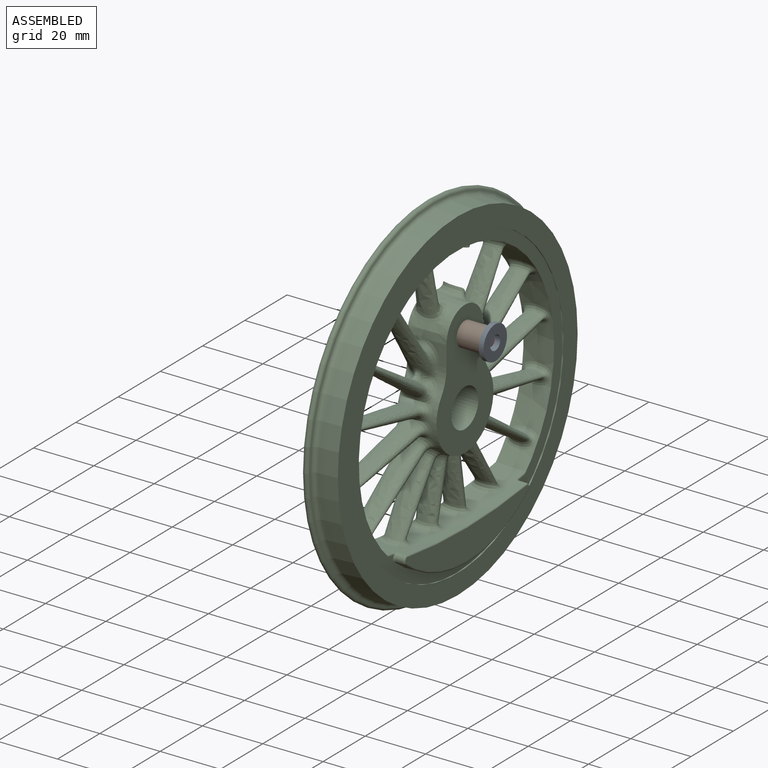
[diagram: assembled view]
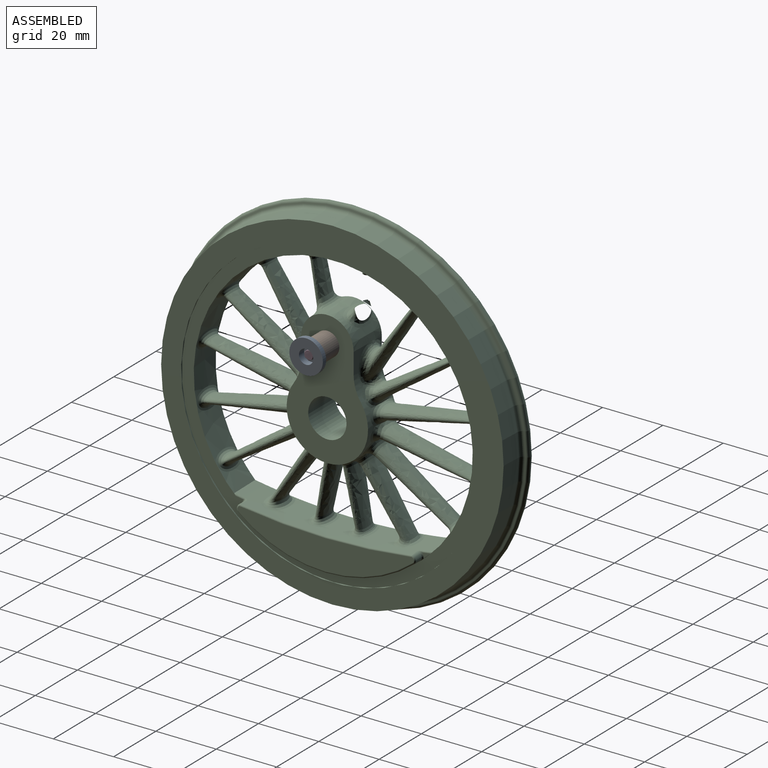
[diagram: assembled view, second angle]
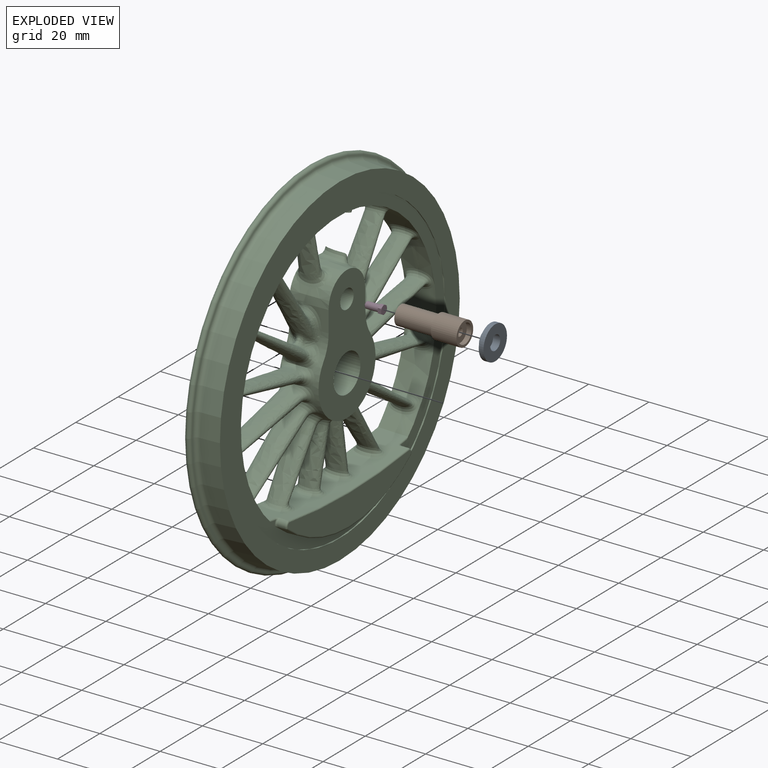
[diagram: exploded view]
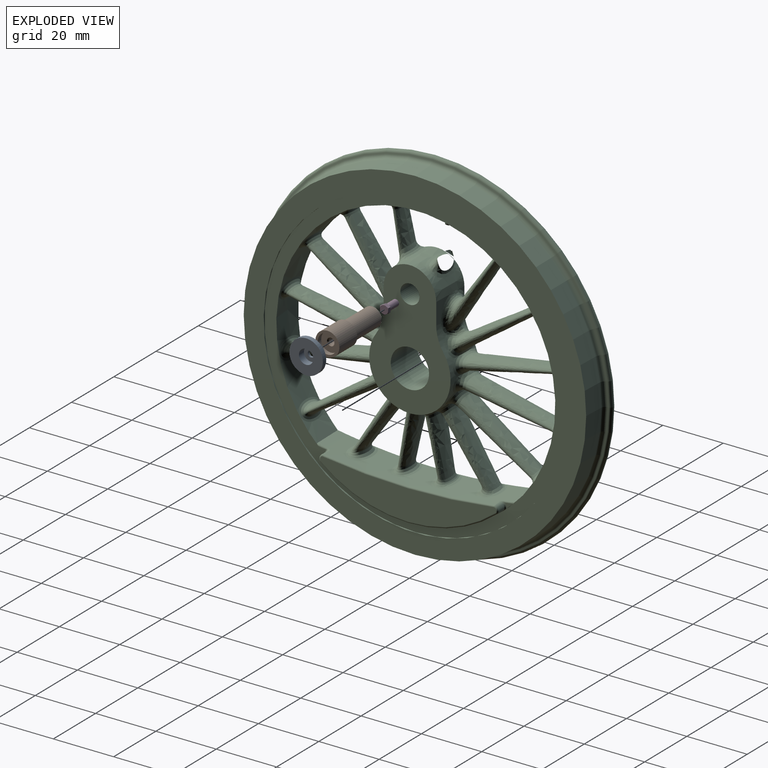
[diagram: exploded view, second angle]
ASSEMBLY  parts=4 mates=3
PART A: 8 faces, bbox 11.1x3.2x11.1 mm
  f0: cylinder r=3.17mm len=6.35mm, axis (0,-1,0), area 31.7mm2, adj f1,f7
  f1: plane 6.35x6.35mm, normal (0,-1,0), area 27.9mm2, adj f0,f2
  f2: cylinder r=1.09mm len=2.18mm, axis (0,-1,0), area 5.4mm2, adj f1,f3
  f3: plane 4.76x4.76mm, normal (0,1,0), area 14.1mm2, adj f2,f4
  f4: cylinder r=2.38mm len=4.76mm, axis (0,-1,0), area 35.6mm2, adj f3,f5
  f5: plane 11.11x11.11mm, normal (0,1,0), area 79.2mm2, adj f4,f6
  f6: cylinder r=5.56mm len=11.11mm, axis (0,-1,0), area 55.4mm2, adj f5,f7
  f7: plane 11.11x11.11mm, normal (0,-1,0), area 65.3mm2, adj f0,f6
PART B: 10 faces, bbox 21.2x7.9x7.9 mm
  f0: cylinder r=3.97mm len=8.47mm, axis (1,0,0), area 211.1mm2, adj f1,f2
  f1: plane 7.94x7.94mm, normal (-1,0,0), area 17.8mm2, adj f0,f3
  f2: plane 7.94x7.94mm, normal (1,0,0), area 17.8mm2, adj f0,f5
  f3: cylinder r=3.17mm len=12.7mm, axis (1,0,0), area 253.4mm2, adj f1,f4
  f4: plane 6.35x6.35mm, normal (-1,0,0), area 31.7mm2, adj f3
  f5: cylinder r=3.17mm len=6.35mm, axis (1,0,0), area 31.7mm2, adj f2,f6
  f6: plane 6.35x6.35mm, normal (1,0,0), area 26.6mm2, adj f5,f9
  f7: cone r=0mm half-angle=59deg, axis (1,0,0), area 2.9mm2, adj f8
  f8: cylinder r=0.89mm len=8.46mm, axis (1,0,0), area 47.3mm2, adj f7,f9
  f9: cone r=0.89mm half-angle=45deg, axis (1,0,0), area 3.7mm2, adj f6,f8
PART C: 158 faces, bbox 15.6x129.3x129.3 mm
  f0: plane 2.61x2.12mm, normal (0.03,-1,0), area 2mm2, adj f1,f156,f157
  f1: cone r=9.16mm half-angle=2deg, axis (-1,0,0), area 224.4mm2, adj f0,f2,f147,f148,f149,f150,f153,f154
  f2: plane 44.43x26.98mm, normal (1,0,0), area 707.3mm2, adj f1,f3,f143,f144,f145,f146,f147,f155
  f3: cone r=12.7mm half-angle=2deg, axis (1,0,0), area 22.3mm2, adj f2,f4,f142,f143,f155
  f4: bspline ~5.27x4.99mm, area 14.2mm2, adj f3,f5,f140,f141
  f5: bspline ~25.79x18.72mm, area 473.2mm2, adj f4,f6,f135,f136,f137,f138,f139,f141
  f6: bspline ~9.89x5.24mm, area 51.6mm2, adj f5,f7,f139
  f7: cone r=45.91mm half-angle=2deg, axis (1,0,0), area 1539.6mm2, adj f6,f8,f12,f15,f25,f88,f89,f90
  f8: bspline ~9.69x6.17mm, area 51.6mm2, adj f7,f9,f11
  f9: bspline ~15.19x7.22mm, area 197.8mm2, adj f8,f10,f11,f149
  f10: bspline ~4.75x4.08mm, area 8.3mm2, adj f9,f149,f157
  f11: bspline ~2.37x2.08mm, area 3.2mm2, adj f8,f9,f133
  f12: bspline ~9.69x6.17mm, area 51.6mm2, adj f7,f13,f14
  f13: bspline ~2.79x2.16mm, area 3.2mm2, adj f12,f14,f133
  f14: bspline ~6.39x2.51mm, area 1.6mm2, adj f12,f13
  f15: bspline ~9.89x5.25mm, area 51.6mm2, adj f7,f16,f17
  f16: bspline ~2.34x2.25mm, area 3.2mm2, adj f15,f17,f133
  f17: bspline ~25.45x18.49mm, area 399mm2, adj f15,f16,f18,f19,f21,f22,f23,f24
  f18: bspline ~6.79x4mm, area 9.2mm2, adj f17,f19,f136,f137
  f19: bspline ~2.51x2.15mm, area 1.1mm2, adj f17,f18,f20,f21
  f20: cone r=12.7mm half-angle=2deg, axis (1,0,0), area 0.2mm2, adj f19,f136,f157
  f21: bspline ~3.99x1.47mm, area 3.7mm2, adj f17,f19,f22,f157
  f22: bspline ~5.42x3.14mm, area 10.7mm2, adj f17,f21,f23,f157
  f23: bspline ~5.35x4.58mm, area 10.6mm2, adj f17,f22,f153,f154
  f24: bspline ~8.78x5.9mm, area 26mm2, adj f17,f142,f154,f155
  f25: bspline ~9.89x6.18mm, area 51.6mm2, adj f7,f26,f27
  f26: bspline ~2.79x2.11mm, area 3.2mm2, adj f25,f27,f133
  f27: bspline ~28.93x8.8mm, area 486.9mm2, adj f25,f26,f28,f87
  f28: bspline ~11.93x7.51mm, area 67.4mm2, adj f27,f29,f87,f141,f143
  f29: bspline ~11.17x7.51mm, area 67.4mm2, adj f28,f30,f32,f86,f143
  f30: bspline ~28.93x8.8mm, area 486.9mm2, adj f29,f31,f86,f88
  f31: bspline ~2.37x2.08mm, area 3.2mm2, adj f30,f88,f133
  f32: bspline ~11.93x6.38mm, area 67.4mm2, adj f29,f33,f35,f85,f143
  f33: bspline ~25.79x18.72mm, area 486.9mm2, adj f32,f34,f85,f89
  f34: bspline ~2.34x2.25mm, area 3.2mm2, adj f33,f89,f133
  f35: bspline ~11.93x6.38mm, area 67.4mm2, adj f32,f36,f39,f84,f143
  f36: bspline ~22.25x16.41mm, area 399.1mm2, adj f35,f37,f38,f84
  f37: bspline ~9.85x7.2mm, area 53.7mm2, adj f36,f38,f128
  f38: bspline ~3.62x2.41mm, area 5.3mm2, adj f36,f37,f133
  f39: bspline ~11.93x7.51mm, area 67.4mm2, adj f35,f40,f43,f83,f143
  f40: bspline ~18.97x7.95mm, area 321.9mm2, adj f39,f41,f42,f83
  f41: bspline ~9.97x6.75mm, area 53.1mm2, adj f40,f42,f128
  f42: bspline ~3.79x2.2mm, area 4.7mm2, adj f40,f41,f133
  f43: bspline ~11.93x7.52mm, area 67.4mm2, adj f39,f44,f47,f82,f143
  f44: bspline ~18.97x7.95mm, area 321.9mm2, adj f43,f45,f46,f82
  f45: bspline ~9.97x6.75mm, area 53.1mm2, adj f44,f46,f128
  f46: bspline ~3.97x2.25mm, area 4.7mm2, adj f44,f45,f133
  f47: bspline ~11.93x6.38mm, area 67.4mm2, adj f43,f48,f51,f81,f143
  f48: bspline ~22.25x16.41mm, area 399.2mm2, adj f47,f49,f50,f81
  f49: bspline ~9.85x7.2mm, area 53.7mm2, adj f48,f50,f128
  f50: bspline ~3.88x2.41mm, area 5.3mm2, adj f48,f49,f133
  f51: bspline ~11.93x6.38mm, area 67.4mm2, adj f47,f52,f54,f80,f143
  f52: bspline ~25.79x18.72mm, area 486.9mm2, adj f51,f53,f80,f129
  f53: bspline ~2.34x2.25mm, area 3.2mm2, adj f52,f129,f133
  f54: bspline ~11.93x7.51mm, area 67.4mm2, adj f51,f55,f57,f79,f143
  f55: bspline ~28.93x8.8mm, area 486.9mm2, adj f54,f56,f79,f130
  f56: bspline ~2.79x2.11mm, area 3.2mm2, adj f55,f130,f133
  f57: bspline ~11.93x7.52mm, area 67.4mm2, adj f54,f58,f60,f78,f143
  f58: bspline ~28.93x8.8mm, area 486.9mm2, adj f57,f59,f78,f131
  f59: bspline ~2.37x2.08mm, area 3.2mm2, adj f58,f131,f133
  f60: bspline ~11.55x4.99mm, area 34.3mm2, adj f57,f61,f76,f77,f143
  f61: bspline ~25.79x18.72mm, area 473.2mm2, adj f60,f62,f73,f74,f75,f76,f77,f132
  f62: bspline ~6.64x6.64mm, area 19.2mm2, adj f61,f63,f66,f72
  f63: bspline ~6.65x4.1mm, area 8.7mm2, adj f62,f64,f66,f77
  f64: bspline ~5.53x2.87mm, area 7.1mm2, adj f63,f65,f66,f144
  f65: bspline ~8.78x5.9mm, area 26mm2, adj f64,f66,f147,f148
  f66: bspline ~25.45x18.49mm, area 399mm2, adj f62,f63,f64,f65,f67,f68,f69,f70
  f67: bspline ~5.42x3.14mm, area 10.7mm2, adj f66,f69,f156,f157
  f68: bspline ~2.34x2.25mm, area 3.2mm2, adj f66,f133,f134
  f69: bspline ~3.99x1.47mm, area 3.7mm2, adj f66,f67,f70,f157
  f70: bspline ~2.51x2.15mm, area 1.1mm2, adj f66,f69,f71,f72
  f71: cone r=12.7mm half-angle=2deg, axis (1,0,0), area 0.2mm2, adj f70,f73,f157
  f72: bspline ~6.92x4.04mm, area 9.2mm2, adj f62,f66,f70,f73
  f73: bspline ~3.93x3.7mm, area 3.7mm2, adj f61,f71,f72,f74
  f74: bspline ~3.75x3.55mm, area 6.3mm2, adj f61,f73,f76,f157
  f75: bspline ~2.34x2.25mm, area 3.2mm2, adj f61,f132,f133
  f76: bspline ~3.94x2.85mm, area 4.7mm2, adj f60,f61,f74,f78,f157
  f77: bspline ~5.36x5.16mm, area 14.2mm2, adj f60,f61,f63,f144
  f78: bspline ~5.9x3.24mm, area 8.8mm2, adj f57,f58,f76,f79,f157
  f79: bspline ~5.89x3.27mm, area 8.8mm2, adj f54,f55,f78,f80,f157
  f80: bspline ~4.99x4.43mm, area 8.8mm2, adj f51,f52,f79,f81,f157
  f81: bspline ~5.01x4.37mm, area 8.8mm2, adj f47,f48,f80,f82,f157
  f82: bspline ~5.9x3.24mm, area 8.8mm2, adj f43,f44,f81,f83,f157
  f83: bspline ~5.89x3.27mm, area 8.8mm2, adj f39,f40,f82,f84,f157
  f84: bspline ~4.99x4.43mm, area 8.8mm2, adj f35,f36,f83,f85,f157
  f85: bspline ~5.01x4.37mm, area 8.8mm2, adj f32,f33,f84,f86,f157
  f86: bspline ~5.9x3.24mm, area 8.8mm2, adj f29,f30,f85,f87,f157
  f87: bspline ~5.89x3.27mm, area 8.8mm2, adj f27,f28,f86,f138,f157
  f88: bspline ~9.89x6.18mm, area 51.6mm2, adj f7,f30,f31
  f89: bspline ~9.89x5.25mm, area 51.6mm2, adj f7,f33,f34
  f90: torus R=203.57mm, axis (1,0,0), area 2.4mm2, adj f7,f91,f113,f114,f128
  f91: plane 2.43x1.79mm, normal (1,0,0), area 1.7mm2, adj f90,f92,f114
  f92: torus R=2.1mm, axis (1,0,0), area 1.9mm2, adj f91,f93,f112,f113,f115
  f93: cylinder r=1.59mm len=2.6mm, axis (-1,0,0), area 7.8mm2, adj f92,f94,f110,f111
  f94: bspline ~4.2x0.59mm, area 0.4mm2, adj f93,f95,f112,f124
  f95: sphere r=0.51mm, area 0.1mm2, adj f94,f96,f110
  f96: torus R=45.64mm, axis (1,0,0), area 49.5mm2, adj f95,f97,f109,f124
  f97: sphere r=0.51mm, area 0.1mm2, adj f96,f98,f108
  f98: torus R=1.08mm, axis (1,0,0), area 1.8mm2, adj f97,f99,f105,f109
  f99: cylinder r=1.59mm len=2.57mm, axis (-1,0,0), area 7.3mm2, adj f98,f100,f102,f108
  f100: bspline ~4.55x0.63mm, area 0.6mm2, adj f99,f101,f105,f128
  f101: bspline ~1.67x1.05mm, area 0.8mm2, adj f100,f102,f127,f128
  f102: torus R=2.1mm, axis (1,0,0), area 1.8mm2, adj f99,f101,f103,f104,f125
  f103: plane 2.33x1.73mm, normal (1,0,0), area 1.6mm2, adj f102,f126,f127
  f104: bspline ~0.75x0.64mm, area 0.1mm2, adj f102,f108,f124,f125
  f105: sphere r=0.51mm, area 0.2mm2, adj f98,f100,f106
  f106: torus R=203.69mm, axis (1,0,0), area 44.5mm2, adj f105,f107,f109,f128
  f107: sphere r=0.51mm, area 0.1mm2, adj f106,f110,f111
  f108: bspline ~4.2x0.59mm, area 0.4mm2, adj f97,f99,f104,f124
  f109: plane 58.31x11.91mm, normal (1,0,0), area 423.1mm2, adj f96,f98,f106,f110
  f110: torus R=1.08mm, axis (1,0,0), area 1.9mm2, adj f93,f95,f107,f109
  f111: bspline ~4.37x0.68mm, area 0.5mm2, adj f93,f107,f113,f128
  f112: bspline ~0.72x0.63mm, area 0.1mm2, adj f92,f94,f115,f124
  f113: bspline ~1.79x1.07mm, area 0.8mm2, adj f90,f92,f111,f128
  f114: torus R=46.08mm, axis (-1,0,0), area 0.5mm2, adj f7,f90,f91,f115
  f115: bspline ~0.95x0.94mm, area 0.2mm2, adj f7,f92,f112,f114
  f116: plane 100.33x100.33mm, normal (1,0,0), area 1184mm2, adj f7,f117
  f117: cylinder r=50.16mm len=100.33mm, axis (-1,0,0), area 128.1mm2, adj f116,f118
  f118: plane 113.53x113.53mm, normal (1,0,0), area 2217.4mm2, adj f117,f119
  f119: cone r=56.77mm half-angle=2.8deg, axis (-1,0,0), area 2382.4mm2, adj f118,f120
  f120: torus R=58.49mm, axis (-1,0,0), area 680mm2, adj f119,f121
  f121: cone r=58.25mm half-angle=80deg, axis (-1,0,0), area 168mm2, adj f120,f122
  f122: torus R=58.52mm, axis (-1,0,0), area 1056mm2, adj f121,f123
  f123: cone r=57.15mm half-angle=80deg, axis (1,0,0), area 572.1mm2, adj f122,f133
  f124: cone r=46.13mm half-angle=2deg, axis (-1,0,0), area 198.3mm2, adj f7,f94,f96,f104,f108,f112
  f125: bspline ~0.95x0.95mm, area 0.2mm2, adj f7,f102,f104,f126
  f126: torus R=46.08mm, axis (-1,0,0), area 0.5mm2, adj f7,f103,f125,f127
  f127: torus R=203.57mm, axis (1,0,0), area 2.3mm2, adj f7,f101,f103,f126,f128
  f128: cone r=203.2mm half-angle=2deg, axis (1,0,0), area 595.5mm2, adj f7,f37,f41,f45,f49,f90,f100,f101
  f129: bspline ~9.89x5.24mm, area 51.6mm2, adj f7,f52,f53
  f130: bspline ~9.89x6.18mm, area 51.6mm2, adj f7,f55,f56
  f131: bspline ~9.89x6.18mm, area 51.6mm2, adj f7,f58,f59
  f132: bspline ~9.89x5.25mm, area 51.6mm2, adj f7,f61,f75
  f133: plane 114.4x114.4mm, normal (-1,0,0), area 4146.6mm2, adj f7,f11,f13,f16,f26,f31,f34,f38
  f134: bspline ~9.89x5.24mm, area 51.6mm2, adj f7,f66,f68
  f135: bspline ~3.75x3.55mm, area 6.3mm2, adj f5,f136,f138,f157
  f136: bspline ~3.93x3.7mm, area 3.7mm2, adj f5,f18,f20,f135
  f137: bspline ~6.64x6.64mm, area 19.2mm2, adj f5,f17,f18,f140
  f138: bspline ~3.83x2.79mm, area 4.7mm2, adj f5,f87,f135,f141,f157
  f139: bspline ~2.34x2.25mm, area 3.2mm2, adj f5,f6,f133
  f140: bspline ~6.65x4.1mm, area 8.7mm2, adj f4,f17,f137,f142
  f141: bspline ~11.55x4.99mm, area 34.3mm2, adj f4,f5,f28,f138,f143
  f142: bspline ~4.78x2.87mm, area 7.1mm2, adj f3,f17,f24,f140
  f143: cone r=13.93mm half-angle=2deg, axis (-1,0,0), area 120mm2, adj f2,f3,f28,f29,f32,f35,f39,f43
  f144: cone r=12.7mm half-angle=2deg, axis (1,0,0), area 22.3mm2, adj f2,f64,f77,f143,f147
  f145: cylinder r=3.17mm len=12.7mm, axis (1,0,0), area 253.4mm2, adj f2,f157
  f146: cylinder r=6.35mm len=12.7mm, axis (1,0,0), area 506.7mm2, adj f2,f157
  f147: plane 7.02x6.48mm, normal (0.03,-1,0), area 23mm2, adj f1,f2,f65,f144
  f148: bspline ~5.39x4.81mm, area 12.8mm2, adj f1,f65,f66,f156
  f149: bspline ~10.76x6.08mm, area 60.7mm2, adj f1,f9,f10
  f150: bspline ~10.76x6.08mm, area 60.7mm2, adj f1,f151,f152
  f151: bspline ~6.76x4.39mm, area 3.4mm2, adj f150,f152
  f152: bspline ~4.75x4.08mm, area 8.3mm2, adj f150,f151,f157
  f153: plane 2.61x2.12mm, normal (0.03,1,0), area 2mm2, adj f1,f23,f157
  f154: bspline ~5.56x5.39mm, area 12.8mm2, adj f1,f17,f23,f24
  f155: plane 7.02x6.48mm, normal (0.03,1,0), area 23mm2, adj f1,f2,f3,f24
  f156: bspline ~5.35x4.58mm, area 10.6mm2, adj f0,f66,f67,f148
  f157: plane 45.7x28.25mm, normal (-1,0,0), area 759.5mm2, adj f0,f1,f10,f20,f21,f22,f67,f69
PART D: 24 faces, bbox 6.1x3.3x3.3 mm
  f0: plane 2.78x2.78mm, normal (-1,0,0), area 2.3mm2, adj f1,f3
  f1: cylinder r=1.09mm len=4.38mm, axis (1,0,0), area 30.1mm2, adj f0,f23
  f2: plane 1.42x1.42mm, normal (-1,0,0), area 1.6mm2, adj f23
  f3: cylinder r=1.39mm len=2.78mm, axis (1,0,0), area 0.9mm2, adj f0,f4,f5,f6,f7,f8,f9
  f4: plane 1.39x0.4mm, normal (-1,0,0), area 0.1mm2, adj f3,f12,f13
  f5: plane 1.2x0.69mm, normal (-1,0,0), area 0.1mm2, adj f3,f13,f14
  f6: plane 1.2x0.69mm, normal (-1,0,0), area 0.1mm2, adj f3,f14,f15
  f7: plane 1.2x0.69mm, normal (-1,0,0), area 0.1mm2, adj f3,f11,f12
  f8: plane 1.39x0.4mm, normal (-1,0,0), area 0.1mm2, adj f3,f10,f15
  f9: plane 1.2x0.69mm, normal (-1,0,0), area 0.1mm2, adj f3,f10,f11
  f10: plane 1.52x1.23mm, normal (0,-0.5,-0.87), area 1.7mm2, adj f8,f9,f11,f15,f16,f17
  f11: plane 1.74x1.23mm, normal (0,-1,0), area 1.7mm2, adj f7,f9,f10,f12,f17,f18
  f12: plane 1.52x1.23mm, normal (0,-0.5,0.87), area 1.7mm2, adj f4,f7,f11,f13,f18,f19
  f13: plane 1.52x1.23mm, normal (0,0.5,0.87), area 1.7mm2, adj f4,f5,f12,f14,f19,f20
  f14: plane 1.74x1.23mm, normal (0,1,0), area 1.7mm2, adj f5,f6,f13,f15,f20,f21
  f15: plane 1.52x1.23mm, normal (0,0.5,-0.87), area 1.7mm2, adj f6,f8,f10,f14,f16,f21
  f16: cone r=1.39mm half-angle=60deg, axis (-1,0,0), area 0.2mm2, adj f10,f15,f22
  f17: cone r=1.39mm half-angle=60deg, axis (-1,0,0), area 0.2mm2, adj f10,f11,f22
  f18: cone r=1.39mm half-angle=60deg, axis (-1,0,0), area 0.2mm2, adj f11,f12,f22
  f19: cone r=1.39mm half-angle=60deg, axis (-1,0,0), area 0.2mm2, adj f12,f13,f22
  f20: cone r=1.39mm half-angle=60deg, axis (-1,0,0), area 0.2mm2, adj f13,f14,f22
  f21: cone r=1.39mm half-angle=60deg, axis (-1,0,0), area 0.2mm2, adj f14,f15,f22
  f22: plane 2.78x2.78mm, normal (1,0,0), area 6.1mm2, adj f16,f17,f18,f19,f20,f21
  f23: cone r=1.09mm half-angle=45deg, axis (1,0,0), area 3.1mm2, adj f1,f2
PLACE A rot(axis=(0,0,-1),90deg) t=(65.28,79.16,-48.67)mm
PLACE B t=(66.08,79.16,-48.67)mm
PLACE C t=(44.91,79.16,-70.9)mm
PLACE D t=(65.28,79.16,-48.67)mm
MATE fastened A.f0 <-> D.f1  axis (1,0,0) through (65.28,79.16,-48.67)mm
MATE fastened C.f1 <-> B.f3  axis (1,0,0) through (57.61,79.16,-48.67)mm
MATE fastened B.f3 <-> A.f0  axis (1,0,0) through (66.08,79.16,-48.67)mm
